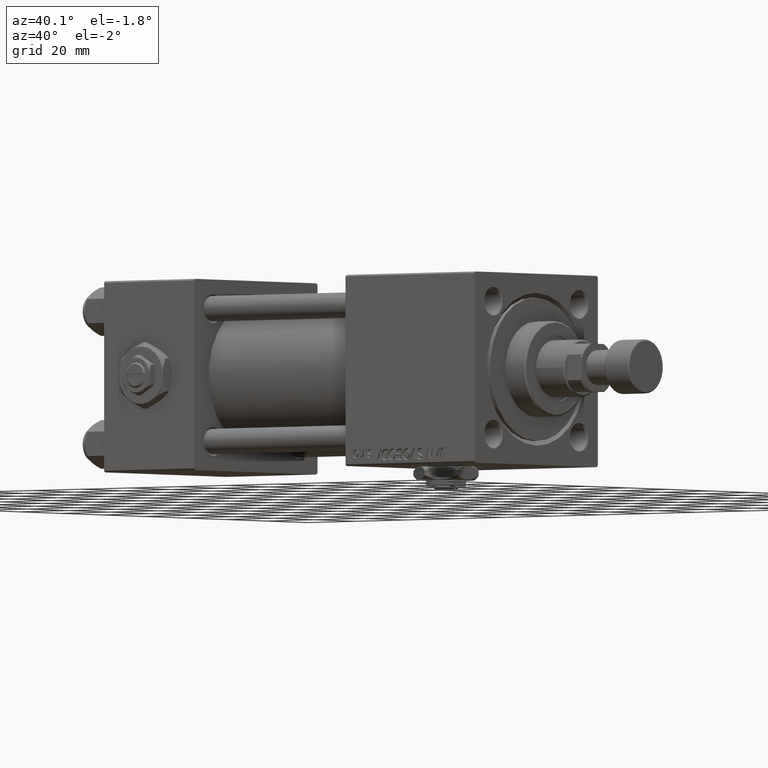
[diagram: clean part render]
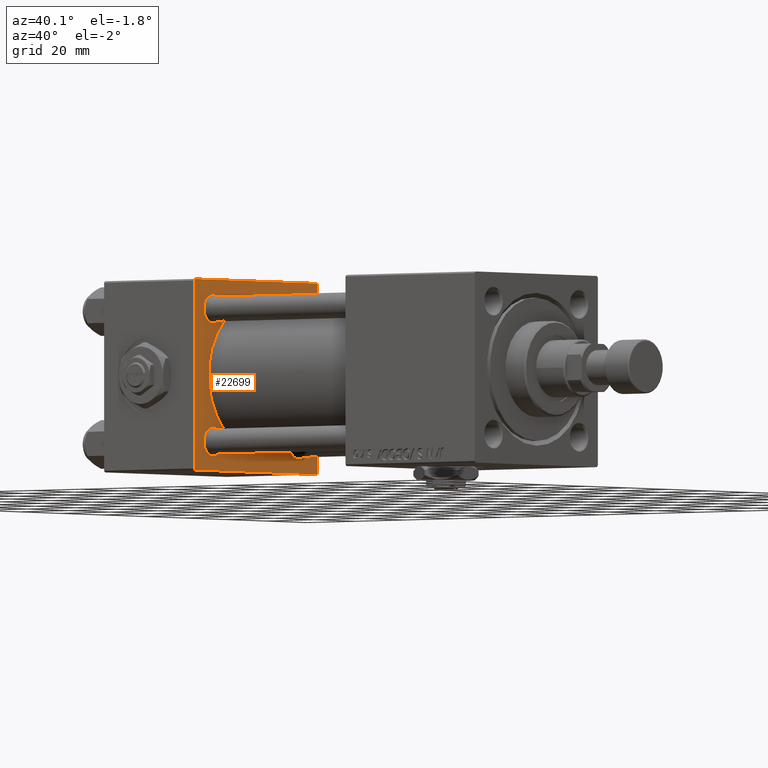
[diagram: same view with one face highlighted and labeled with its STEP entity id]
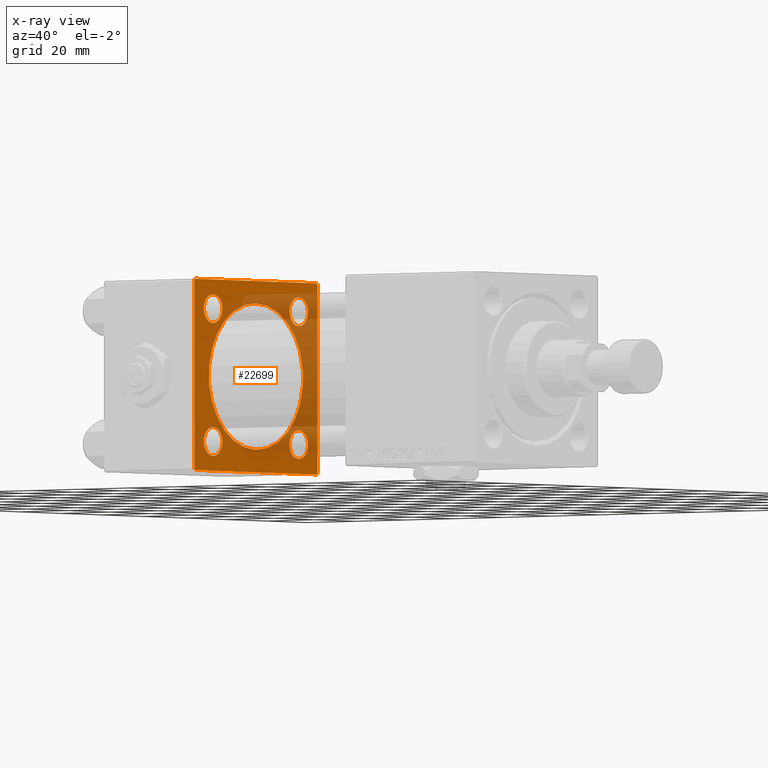
[diagram: x-ray of the same camera — body ghosted, the highlighted face saturated]
A machine part, auxiliary view. The second image highlights one B-rep face of the part: STEP entity #22699.
The next image is the same camera in x-ray: the body ghosted, the highlighted face saturated — about 34% of this face is hidden behind the body in this view.
In plain terms, the highlighted planar face has unit normal (-1, 0, 0).
Its self-contained STEP definition (entity closure, byte-faithful):
#138 = ORIENTED_EDGE ( 'NONE', *, *, #21423, .F. ) ;
#1270 = DIRECTION ( 'NONE',  ( 0.000000000000000000, 0.000000000000000000, 1.000000000000000000 ) ) ;
#1498 = PLANE ( 'NONE',  #8225 ) ;
#1642 = VERTEX_POINT ( 'NONE', #21298 ) ;
#1708 = LINE ( 'NONE', #10484, #18181 ) ;
#1993 = VERTEX_POINT ( 'NONE', #6803 ) ;
#2330 = VERTEX_POINT ( 'NONE', #39187 ) ;
#2909 = CIRCLE ( 'NONE', #18178, 4.500000000000017764 ) ;
#3701 = ORIENTED_EDGE ( 'NONE', *, *, #44556, .T. ) ;
#3872 = CARTESIAN_POINT ( 'NONE',  ( 37.00000000000000000, -20.84999999999999076, -20.85000000000000497 ) ) ;
#4090 = DIRECTION ( 'NONE',  ( 0.000000000000000000, 0.000000000000000000, 1.000000000000000000 ) ) ;
#4925 = VERTEX_POINT ( 'NONE', #36826 ) ;
#5384 = ORIENTED_EDGE ( 'NONE', *, *, #15293, .T. ) ;
#5964 = VECTOR ( 'NONE', #35175, 999.9999999999998863 ) ;
#6519 = ORIENTED_EDGE ( 'NONE', *, *, #38287, .T. ) ;
#6761 = ORIENTED_EDGE ( 'NONE', *, *, #40148, .T. ) ;
#6778 = VECTOR ( 'NONE', #44849, 1000.000000000000000 ) ;
#6803 = CARTESIAN_POINT ( 'NONE',  ( 37.00000000000000000, -29.50000000000000000, -30.00000000000000711 ) ) ;
#8225 = AXIS2_PLACEMENT_3D ( 'NONE', #17197, #49409, #12945 ) ;
#8296 = CIRCLE ( 'NONE', #21882, 4.500000000000017764 ) ;
#8591 = EDGE_LOOP ( 'NONE', ( #23295, #138 ) ) ;
#9100 = ORIENTED_EDGE ( 'NONE', *, *, #35548, .T. ) ;
#10387 = DIRECTION ( 'NONE',  ( -1.000000000000000000, 0.000000000000000000, -0.000000000000000000 ) ) ;
#10484 = CARTESIAN_POINT ( 'NONE',  ( 37.00000000000000000, 29.49999999999999289, 30.00000000000000000 ) ) ;
#10632 = DIRECTION ( 'NONE',  ( 1.000000000000000000, -0.000000000000000000, 0.000000000000000000 ) ) ;
#11345 = AXIS2_PLACEMENT_3D ( 'NONE', #43628, #31640, #47884 ) ;
#11488 = DIRECTION ( 'NONE',  ( 0.000000000000000000, 0.000000000000000000, -1.000000000000000000 ) ) ;
#11989 = VERTEX_POINT ( 'NONE', #52163 ) ;
#12411 = CIRCLE ( 'NONE', #29357, 23.00000000000000000 ) ;
#12436 = CARTESIAN_POINT ( 'NONE',  ( 37.00000000000000000, 29.99999999999999289, -29.50000000000000000 ) ) ;
#12588 = EDGE_CURVE ( 'NONE', #18818, #22548, #1708, .T. ) ;
#12685 = AXIS2_PLACEMENT_3D ( 'NONE', #26275, #29456, #1270 ) ;
#12945 = DIRECTION ( 'NONE',  ( -0.000000000000000000, 0.000000000000000000, 1.000000000000000000 ) ) ;
#13181 = LINE ( 'NONE', #16662, #16622 ) ;
#13595 = CARTESIAN_POINT ( 'NONE',  ( 37.00000000000000000, 29.99999999999999289, 30.00000000000000000 ) ) ;
#13739 = FACE_BOUND ( 'NONE', #30450, .T. ) ;
#14243 = EDGE_CURVE ( 'NONE', #18818, #18322, #35686, .T. ) ;
#14394 = VECTOR ( 'NONE', #49531, 1000.000000000000000 ) ;
#14432 = CARTESIAN_POINT ( 'NONE',  ( 37.00000000000000000, 20.84999999999999787, -16.34999999999998366 ) ) ;
#14873 = CIRCLE ( 'NONE', #21657, 4.500000000000017764 ) ;
#14878 = VERTEX_POINT ( 'NONE', #14432 ) ;
#15015 = CARTESIAN_POINT ( 'NONE',  ( 37.00000000000000000, -20.84999999999999076, 20.85000000000000497 ) ) ;
#15293 = EDGE_CURVE ( 'NONE', #24418, #2330, #22388, .T. ) ;
#15319 = AXIS2_PLACEMENT_3D ( 'NONE', #17123, #10387, #26611 ) ;
#15923 = VERTEX_POINT ( 'NONE', #39171 ) ;
#16009 = AXIS2_PLACEMENT_3D ( 'NONE', #3872, #52555, #20102 ) ;
#16195 = ORIENTED_EDGE ( 'NONE', *, *, #14243, .F. ) ;
#16385 = DIRECTION ( 'NONE',  ( 0.000000000000000000, 0.7071067811865474617, -0.7071067811865474617 ) ) ;
#16622 = VECTOR ( 'NONE', #29395, 1000.000000000000000 ) ;
#16662 = CARTESIAN_POINT ( 'NONE',  ( 37.00000000000000000, 29.99999999999999289, -30.00000000000000000 ) ) ;
#17123 = CARTESIAN_POINT ( 'NONE',  ( 37.00000000000000000, -20.84999999999999076, -20.85000000000000497 ) ) ;
#17197 = CARTESIAN_POINT ( 'NONE',  ( 37.00000000000000000, 0.000000000000000000, 0.000000000000000000 ) ) ;
#17269 = EDGE_CURVE ( 'NONE', #14878, #41512, #2909, .T. ) ;
#17358 = CARTESIAN_POINT ( 'NONE',  ( 37.00000000000000000, 29.99999999999999289, 29.50000000000000000 ) ) ;
#17739 = ORIENTED_EDGE ( 'NONE', *, *, #49026, .T. ) ;
#18178 = AXIS2_PLACEMENT_3D ( 'NONE', #21763, #46780, #18574 ) ;
#18181 = VECTOR ( 'NONE', #18208, 1000.000000000000114 ) ;
#18208 = DIRECTION ( 'NONE',  ( 0.000000000000000000, -0.7071067811865474617, 0.7071067811865474617 ) ) ;
#18322 = VERTEX_POINT ( 'NONE', #12436 ) ;
#18574 = DIRECTION ( 'NONE',  ( 0.000000000000000000, 0.000000000000000000, 1.000000000000000000 ) ) ;
#18575 = EDGE_CURVE ( 'NONE', #1642, #22994, #14873, .T. ) ;
#18701 = EDGE_CURVE ( 'NONE', #41512, #14878, #29274, .T. ) ;
#18818 = VERTEX_POINT ( 'NONE', #17358 ) ;
#18879 = CARTESIAN_POINT ( 'NONE',  ( 37.00000000000000000, -2.602085213965210642E-15, 0.000000000000000000 ) ) ;
#18905 = CIRCLE ( 'NONE', #23152, 23.00000000000000000 ) ;
#19222 = LINE ( 'NONE', #35697, #5964 ) ;
#19409 = DIRECTION ( 'NONE',  ( 0.000000000000000000, 0.000000000000000000, 1.000000000000000000 ) ) ;
#19637 = EDGE_CURVE ( 'NONE', #33242, #1993, #13181, .T. ) ;
#20102 = DIRECTION ( 'NONE',  ( 0.000000000000000000, 0.000000000000000000, 1.000000000000000000 ) ) ;
#21288 = DIRECTION ( 'NONE',  ( -0.000000000000000000, -0.7071067811865474617, -0.7071067811865474617 ) ) ;
#21298 = CARTESIAN_POINT ( 'NONE',  ( 37.00000000000000000, -20.84999999999999076, 16.34999999999998721 ) ) ;
#21423 = EDGE_CURVE ( 'NONE', #51196, #11989, #12411, .T. ) ;
#21657 = AXIS2_PLACEMENT_3D ( 'NONE', #15015, #43481, #34957 ) ;
#21699 = CARTESIAN_POINT ( 'NONE',  ( 37.00000000000000000, 20.84999999999999787, -25.35000000000001918 ) ) ;
#21763 = CARTESIAN_POINT ( 'NONE',  ( 37.00000000000000000, 20.84999999999999787, -20.85000000000000142 ) ) ;
#21882 = AXIS2_PLACEMENT_3D ( 'NONE', #39005, #38474, #26494 ) ;
#22388 = CIRCLE ( 'NONE', #11345, 4.500000000000017764 ) ;
#22548 = VERTEX_POINT ( 'NONE', #24415 ) ;
#22699 = ADVANCED_FACE ( 'NONE', ( #45932, #36912, #37947, #13739, #33173, #49923 ), #1498, .F. ) ;
#22994 = VERTEX_POINT ( 'NONE', #47204 ) ;
#23152 = AXIS2_PLACEMENT_3D ( 'NONE', #18879, #10632, #19409 ) ;
#23295 = ORIENTED_EDGE ( 'NONE', *, *, #50629, .F. ) ;
#23510 = ORIENTED_EDGE ( 'NONE', *, *, #12588, .T. ) ;
#23674 = CIRCLE ( 'NONE', #16009, 4.500000000000017764 ) ;
#24415 = CARTESIAN_POINT ( 'NONE',  ( 37.00000000000000000, 29.49999999999999289, 30.00000000000000000 ) ) ;
#24418 = VERTEX_POINT ( 'NONE', #41509 ) ;
#24491 = ORIENTED_EDGE ( 'NONE', *, *, #50482, .T. ) ;
#24848 = EDGE_CURVE ( 'NONE', #2330, #24418, #8296, .T. ) ;
#25747 = VECTOR ( 'NONE', #11488, 1000.000000000000000 ) ;
#26275 = CARTESIAN_POINT ( 'NONE',  ( 37.00000000000000000, -20.84999999999999076, 20.85000000000000497 ) ) ;
#26494 = DIRECTION ( 'NONE',  ( 0.000000000000000000, 0.000000000000000000, 1.000000000000000000 ) ) ;
#26611 = DIRECTION ( 'NONE',  ( 0.000000000000000000, 0.000000000000000000, 1.000000000000000000 ) ) ;
#26951 = ORIENTED_EDGE ( 'NONE', *, *, #24848, .T. ) ;
#28355 = LINE ( 'NONE', #32872, #6778 ) ;
#28612 = CARTESIAN_POINT ( 'NONE',  ( 37.00000000000000000, -29.50000000000001066, -30.00000000000000711 ) ) ;
#28811 = CARTESIAN_POINT ( 'NONE',  ( 37.00000000000000000, 20.84999999999999787, -20.85000000000000142 ) ) ;
#29274 = CIRCLE ( 'NONE', #42050, 4.500000000000017764 ) ;
#29357 = AXIS2_PLACEMENT_3D ( 'NONE', #39634, #32175, #48930 ) ;
#29395 = DIRECTION ( 'NONE',  ( 0.000000000000000000, -1.000000000000000000, -1.156482317317871725E-16 ) ) ;
#29456 = DIRECTION ( 'NONE',  ( -1.000000000000000000, 0.000000000000000000, -0.000000000000000000 ) ) ;
#30450 = EDGE_LOOP ( 'NONE', ( #5384, #26951 ) ) ;
#31345 = CARTESIAN_POINT ( 'NONE',  ( 37.00000000000000000, 29.49999999999997868, -30.00000000000000000 ) ) ;
#31395 = EDGE_CURVE ( 'NONE', #15923, #44575, #23674, .T. ) ;
#31401 = VERTEX_POINT ( 'NONE', #31803 ) ;
#31640 = DIRECTION ( 'NONE',  ( -1.000000000000000000, 0.000000000000000000, -0.000000000000000000 ) ) ;
#31803 = CARTESIAN_POINT ( 'NONE',  ( 37.00000000000000000, -29.49999999999998579, 29.99999999999999289 ) ) ;
#32175 = DIRECTION ( 'NONE',  ( 1.000000000000000000, -0.000000000000000000, 0.000000000000000000 ) ) ;
#32872 = CARTESIAN_POINT ( 'NONE',  ( 37.00000000000000000, -30.00000000000000000, 29.99999999999999289 ) ) ;
#33173 = FACE_BOUND ( 'NONE', #8591, .T. ) ;
#33242 = VERTEX_POINT ( 'NONE', #31345 ) ;
#34543 = EDGE_CURVE ( 'NONE', #4925, #40193, #28355, .T. ) ;
#34673 = EDGE_LOOP ( 'NONE', ( #44130, #3701, #16195, #23510, #6761, #24491, #43882, #17739 ) ) ;
#34748 = CIRCLE ( 'NONE', #12685, 4.500000000000017764 ) ;
#34957 = DIRECTION ( 'NONE',  ( 0.000000000000000000, 0.000000000000000000, 1.000000000000000000 ) ) ;
#35175 = DIRECTION ( 'NONE',  ( -0.000000000000000000, 0.7071067811865574537, 0.7071067811865376918 ) ) ;
#35548 = EDGE_CURVE ( 'NONE', #44575, #15923, #45883, .T. ) ;
#35686 = LINE ( 'NONE', #39688, #25747 ) ;
#35697 = CARTESIAN_POINT ( 'NONE',  ( 37.00000000000000000, 29.99999999999999289, -29.50000000000000000 ) ) ;
#36552 = CARTESIAN_POINT ( 'NONE',  ( 37.00000000000000000, 2.146024240737016609E-16, -23.00000000000000000 ) ) ;
#36660 = ORIENTED_EDGE ( 'NONE', *, *, #18575, .T. ) ;
#36826 = CARTESIAN_POINT ( 'NONE',  ( 37.00000000000000000, -30.00000000000000000, 29.49999999999999289 ) ) ;
#36912 = FACE_BOUND ( 'NONE', #47748, .T. ) ;
#37124 = LINE ( 'NONE', #28612, #51955 ) ;
#37947 = FACE_BOUND ( 'NONE', #38328, .T. ) ;
#38287 = EDGE_CURVE ( 'NONE', #22994, #1642, #34748, .T. ) ;
#38328 = EDGE_LOOP ( 'NONE', ( #36660, #6519 ) ) ;
#38474 = DIRECTION ( 'NONE',  ( -1.000000000000000000, 0.000000000000000000, -0.000000000000000000 ) ) ;
#39005 = CARTESIAN_POINT ( 'NONE',  ( 37.00000000000000000, 20.84999999999999787, 20.85000000000000142 ) ) ;
#39171 = CARTESIAN_POINT ( 'NONE',  ( 37.00000000000000000, -20.84999999999999076, -16.34999999999998721 ) ) ;
#39172 = CARTESIAN_POINT ( 'NONE',  ( 37.00000000000000000, -20.84999999999999076, -25.35000000000002274 ) ) ;
#39187 = CARTESIAN_POINT ( 'NONE',  ( 37.00000000000000000, 20.84999999999999787, 25.35000000000001918 ) ) ;
#39498 = ORIENTED_EDGE ( 'NONE', *, *, #31395, .T. ) ;
#39634 = CARTESIAN_POINT ( 'NONE',  ( 37.00000000000000000, -2.602085213965210642E-15, 0.000000000000000000 ) ) ;
#39688 = CARTESIAN_POINT ( 'NONE',  ( 37.00000000000000000, 29.99999999999999289, 30.00000000000000000 ) ) ;
#40148 = EDGE_CURVE ( 'NONE', #22548, #31401, #41546, .T. ) ;
#40193 = VERTEX_POINT ( 'NONE', #49011 ) ;
#41509 = CARTESIAN_POINT ( 'NONE',  ( 37.00000000000000000, 20.84999999999999787, 16.34999999999998366 ) ) ;
#41512 = VERTEX_POINT ( 'NONE', #21699 ) ;
#41516 = LINE ( 'NONE', #50549, #41838 ) ;
#41546 = LINE ( 'NONE', #13595, #14394 ) ;
#41838 = VECTOR ( 'NONE', #21288, 1000.000000000000114 ) ;
#42050 = AXIS2_PLACEMENT_3D ( 'NONE', #28811, #45055, #4090 ) ;
#43481 = DIRECTION ( 'NONE',  ( -1.000000000000000000, 0.000000000000000000, -0.000000000000000000 ) ) ;
#43628 = CARTESIAN_POINT ( 'NONE',  ( 37.00000000000000000, 20.84999999999999787, 20.85000000000000142 ) ) ;
#43882 = ORIENTED_EDGE ( 'NONE', *, *, #34543, .T. ) ;
#44130 = ORIENTED_EDGE ( 'NONE', *, *, #19637, .F. ) ;
#44556 = EDGE_CURVE ( 'NONE', #33242, #18322, #19222, .T. ) ;
#44575 = VERTEX_POINT ( 'NONE', #39172 ) ;
#44849 = DIRECTION ( 'NONE',  ( 0.000000000000000000, 0.000000000000000000, -1.000000000000000000 ) ) ;
#45055 = DIRECTION ( 'NONE',  ( -1.000000000000000000, 0.000000000000000000, -0.000000000000000000 ) ) ;
#45883 = CIRCLE ( 'NONE', #15319, 4.500000000000017764 ) ;
#45932 = FACE_BOUND ( 'NONE', #50729, .T. ) ;
#46780 = DIRECTION ( 'NONE',  ( -1.000000000000000000, 0.000000000000000000, -0.000000000000000000 ) ) ;
#47204 = CARTESIAN_POINT ( 'NONE',  ( 37.00000000000000000, -20.84999999999999076, 25.35000000000002274 ) ) ;
#47748 = EDGE_LOOP ( 'NONE', ( #50545, #50575 ) ) ;
#47884 = DIRECTION ( 'NONE',  ( 0.000000000000000000, 0.000000000000000000, 1.000000000000000000 ) ) ;
#48930 = DIRECTION ( 'NONE',  ( 0.000000000000000000, 0.000000000000000000, 1.000000000000000000 ) ) ;
#49011 = CARTESIAN_POINT ( 'NONE',  ( 37.00000000000000000, -30.00000000000000000, -29.50000000000001776 ) ) ;
#49026 = EDGE_CURVE ( 'NONE', #40193, #1993, #37124, .T. ) ;
#49409 = DIRECTION ( 'NONE',  ( -1.000000000000000000, 0.000000000000000000, -0.000000000000000000 ) ) ;
#49531 = DIRECTION ( 'NONE',  ( 0.000000000000000000, -1.000000000000000000, -1.156482317317871725E-16 ) ) ;
#49923 = FACE_OUTER_BOUND ( 'NONE', #34673, .T. ) ;
#50482 = EDGE_CURVE ( 'NONE', #31401, #4925, #41516, .T. ) ;
#50545 = ORIENTED_EDGE ( 'NONE', *, *, #18701, .T. ) ;
#50549 = CARTESIAN_POINT ( 'NONE',  ( 37.00000000000000000, -30.00000000000000000, 29.49999999999999289 ) ) ;
#50575 = ORIENTED_EDGE ( 'NONE', *, *, #17269, .T. ) ;
#50629 = EDGE_CURVE ( 'NONE', #11989, #51196, #18905, .T. ) ;
#50729 = EDGE_LOOP ( 'NONE', ( #9100, #39498 ) ) ;
#51196 = VERTEX_POINT ( 'NONE', #36552 ) ;
#51955 = VECTOR ( 'NONE', #16385, 1000.000000000000114 ) ;
#52163 = CARTESIAN_POINT ( 'NONE',  ( 37.00000000000000000, -2.602085213965210642E-15, 23.00000000000000000 ) ) ;
#52555 = DIRECTION ( 'NONE',  ( -1.000000000000000000, 0.000000000000000000, -0.000000000000000000 ) ) ;